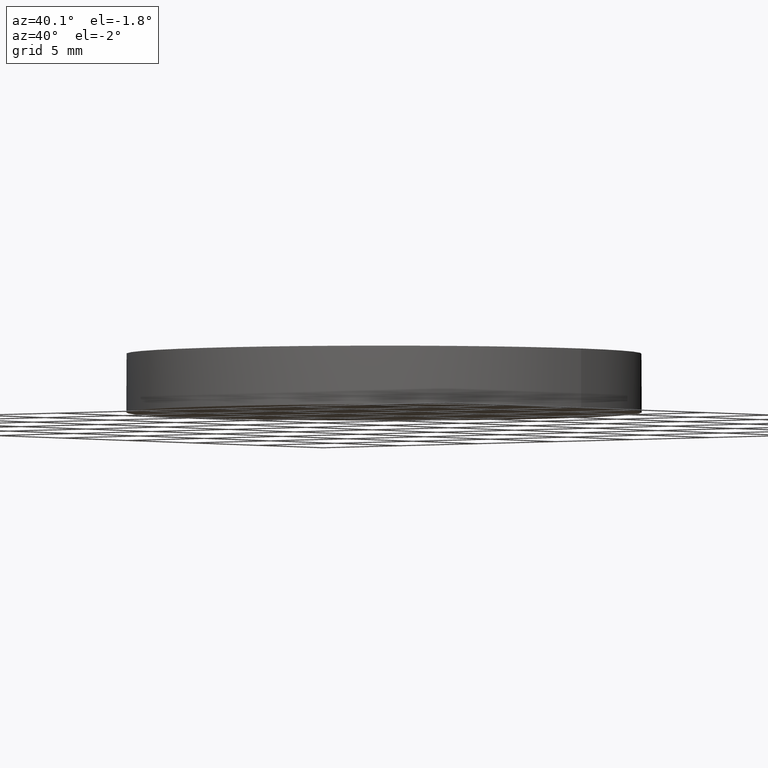
[diagram: clean part render]
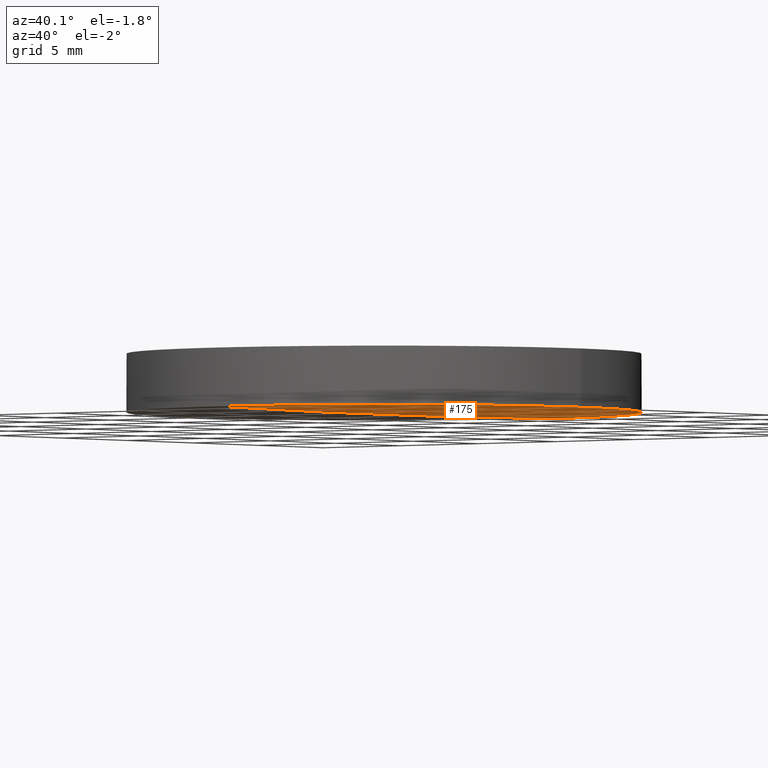
[diagram: same view with one face highlighted and labeled with its STEP entity id]
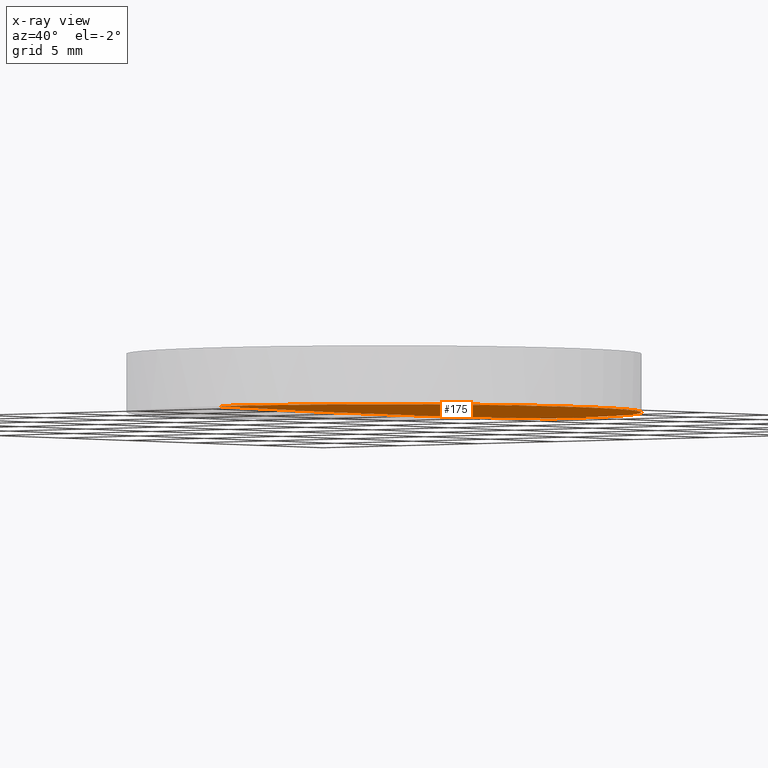
[diagram: x-ray of the same camera — body ghosted, the highlighted face saturated]
A machine part, auxiliary view. The second image highlights one B-rep face of the part: STEP entity #175.
The next image is the same camera in x-ray: the body ghosted, the highlighted face saturated — about 0% of this face is hidden behind the body in this view.
In plain terms, the highlighted face is a freeform B-spline surface patch.
Its self-contained STEP definition (entity closure, byte-faithful):
#4 = AXIS2_PLACEMENT_3D ( 'NONE', #105, #234, #82 ) ;
#10 = CARTESIAN_POINT ( 'NONE',  ( 12.69999999999999900, 2.442490654175340100E-015, 0.1036637186161520100 ) ) ;
#12 = DIRECTION ( 'NONE',  ( -0.0000000000000000000, -0.0000000000000000000, -1.000000000000000000 ) ) ;
#13 = DIRECTION ( 'NONE',  ( -2.988028379211528500E-016, -1.000000000000000000, 5.708087530206460600E-016 ) ) ;
#27 = CARTESIAN_POINT ( 'NONE',  ( -4.270027771401412000E-013, 4.284518518352576200, -0.03539205925730160000 ) ) ;
#28 = CARTESIAN_POINT ( 'NONE',  ( 8.518184611386091700, -4.284518518352525600, -0.0004192200360987136900 ) ) ;
#38 = ORIENTED_EDGE ( 'NONE', *, *, #190, .T. ) ;
#42 = CARTESIAN_POINT ( 'NONE',  ( 4.259164099128814700, -4.284518518352523800, -0.03539205925730210700 ) ) ;
#44 = CARTESIAN_POINT ( 'NONE',  ( 8.516634782019604400, -12.85238621723088300, 0.1411329946493914700 ) ) ;
#45 = CARTESIAN_POINT ( 'NONE',  ( 4.259164099128817300, 4.284518518352576200, -0.03539205925730270300 ) ) ;
#49 = FACE_OUTER_BOUND ( 'NONE', #158, .T. ) ;
#52 = CIRCLE ( 'NONE', #128, 778.0000000000000000 ) ;
#60 = CARTESIAN_POINT ( 'NONE',  ( -4.244522995091619500E-013, 12.70000000000398900, 0.1036637186161473300 ) ) ;
#66 = ORIENTED_EDGE ( 'NONE', *, *, #115, .T. ) ;
#79 = CIRCLE ( 'NONE', #4, 12.69999999999999900 ) ;
#82 = DIRECTION ( 'NONE',  ( 1.000000000000000000, 0.0000000000000000000, 0.0000000000000000000 ) ) ;
#97 = CARTESIAN_POINT ( 'NONE',  ( 12.77677437270879500, 4.284518518352572700, 0.06952410036592707200 ) ) ;
#99 = CARTESIAN_POINT ( 'NONE',  ( 8.516634782019611500, 12.85238621723093300, 0.1411329946493914700 ) ) ;
#103 = CIRCLE ( 'NONE', #109, 12.69999999999999900 ) ;
#105 = CARTESIAN_POINT ( 'NONE',  ( 4.996003610813200500E-016, 2.442490654175340100E-015, 0.1036637186161520100 ) ) ;
#109 = AXIS2_PLACEMENT_3D ( 'NONE', #121, #12, #177 ) ;
#115 = EDGE_CURVE ( 'NONE', #140, #220, #103, .T. ) ;
#118 = CARTESIAN_POINT ( 'NONE',  ( 4.258389171383220700, 12.85238621723093300, 0.1061665185132499000 ) ) ;
#120 = CARTESIAN_POINT ( 'NONE',  ( 4.258389171383212700, -12.85238621723088300, 0.1061665185132499000 ) ) ;
#121 = CARTESIAN_POINT ( 'NONE',  ( 4.996003610813200500E-016, 2.442490654175340100E-015, 0.1036637186161520100 ) ) ;
#125 = ORIENTED_EDGE ( 'NONE', *, *, #231, .T. ) ;
#126 = VERTEX_POINT ( 'NONE', #204 ) ;
#128 = AXIS2_PLACEMENT_3D ( 'NONE', #165, #211, #13 ) ;
#138 = CARTESIAN_POINT ( 'NONE',  ( 12.77444972009382200, 12.85238621723092900, 0.2110635893103247100 ) ) ;
#140 = VERTEX_POINT ( 'NONE', #60 ) ;
#141 = CARTESIAN_POINT ( 'NONE',  ( -4.295632297249600500E-013, -4.284518518352522100, -0.03539205925730100300 ) ) ;
#142 = CARTESIAN_POINT ( 'NONE',  ( 12.77444972009381500, -12.85238621723088300, 0.2110635893103247100 ) ) ;
#158 = EDGE_LOOP ( 'NONE', ( #38, #125, #66 ) ) ;
#160 = CARTESIAN_POINT ( 'NONE',  ( 12.77677437270879300, -4.284518518352525600, 0.06952410036592766900 ) ) ;
#161 = CARTESIAN_POINT ( 'NONE',  ( 8.518184611386091700, 4.284518518352574500, -0.0004192200360992964500 ) ) ;
#165 = CARTESIAN_POINT ( 'NONE',  ( -2.273736754432320100E-013, 0.0000000000000000000, 778.0000000000000000 ) ) ;
#175 = ADVANCED_FACE ( 'NONE', ( #49 ), #230, .T. ) ;
#177 = DIRECTION ( 'NONE',  ( 1.000000000000000000, -8.881784197001252300E-016, 0.0000000000000000000 ) ) ;
#181 = CARTESIAN_POINT ( 'NONE',  ( -4.244061197858275200E-013, 12.85238621723093300, 0.1061665185132509800 ) ) ;
#190 = EDGE_CURVE ( 'NONE', #220, #126, #79, .T. ) ;
#204 = CARTESIAN_POINT ( 'NONE',  ( -4.320418915923616000E-013, -12.70000000000398900, 0.1036637186161473300 ) ) ;
#210 = CARTESIAN_POINT ( 'NONE',  ( -4.320867787373621400E-013, -12.85238621723088000, 0.1061665185132509800 ) ) ;
#211 = DIRECTION ( 'NONE',  ( 1.000000000000000000, -2.988028379211529900E-016, -2.582264637827899900E-016 ) ) ;
#220 = VERTEX_POINT ( 'NONE', #10 ) ;
#230 =( BOUNDED_SURFACE ( )  B_SPLINE_SURFACE ( 3, 3, ( 
 ( #210, #120, #44, #142 ),
 ( #141, #42, #28, #160 ),
 ( #27, #45, #161, #97 ),
 ( #181, #118, #99, #138 ) ),
 .UNSPECIFIED., .F., .F., .F. ) 
 B_SPLINE_SURFACE_WITH_KNOTS ( ( 4, 4 ),
 ( 4, 4 ),
 ( 0.0000000000000000000, 1.000000000000000000 ),
 ( 0.0000000000000000000, 1.000000000000000000 ),
 .UNSPECIFIED. ) 
 GEOMETRIC_REPRESENTATION_ITEM ( )  RATIONAL_B_SPLINE_SURFACE ( (
 ( 1.000000000000000000, 0.9999775250309488300, 0.9999775250309488300, 1.000000000000000000),
 ( 0.9999090261195259200, 0.9998865531951098800, 0.9998865531951098800, 0.9999090261195259200),
 ( 0.9999090261195259200, 0.9998865531951098800, 0.9998865531951098800, 0.9999090261195259200),
 ( 1.000000000000000000, 0.9999775250309488300, 0.9999775250309488300, 1.000000000000000000) ) ) 
 REPRESENTATION_ITEM ( '' )  SURFACE ( )  );
#231 = EDGE_CURVE ( 'NONE', #126, #140, #52, .T. ) ;
#234 = DIRECTION ( 'NONE',  ( -0.0000000000000000000, -0.0000000000000000000, -1.000000000000000000 ) ) ;